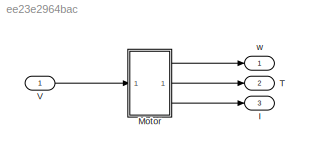
MODEL slx_ee23e2964bac
KIND library
CONFIG AbsTol = auto
CONFIG EnableMultiTasking = off
CONFIG FixedStep = auto
CONFIG MaxStep = auto
CONFIG MinStep = auto
CONFIG RelTol = 1e-3
CONFIG SampleTimeConstraint = Unconstrained
CONFIG SolverName = VariableStepAuto
CONFIG StartTime = 0.0
CONFIG StopTime = 10.0
BLOCK [Outport] I
  NameLocation = right
  Port = 3
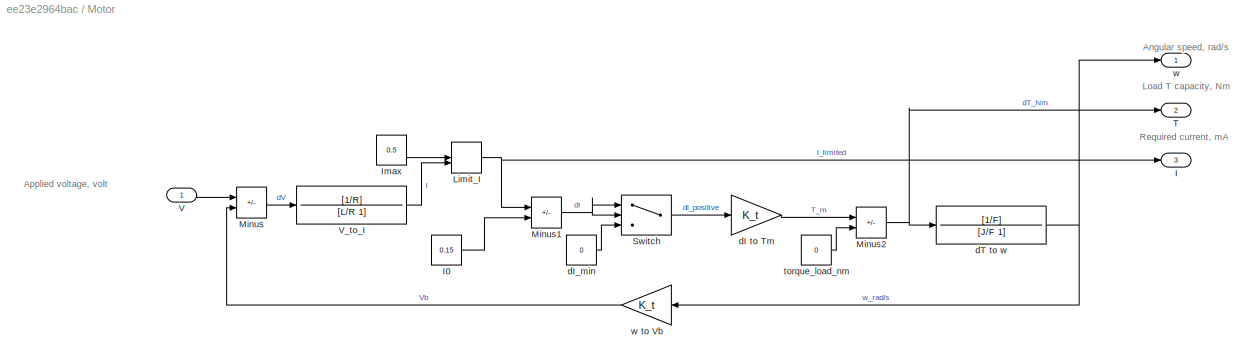
BLOCK [SubSystem] Motor
BLOCK [Outport] Motor/I
  Port = 3
BLOCK [Constant] Motor/I0
  Value = 0.15
BLOCK [Constant] Motor/Imax
  Value = 0.5
BLOCK [MinMax] Motor/Limit_I
  Inputs = 2
BLOCK [Sum] Motor/Minus
  IconShape = rectangular
  Inputs = +-
BLOCK [Sum] Motor/Minus1
  IconShape = rectangular
  Inputs = +-
  NameLocation = top
BLOCK [Sum] Motor/Minus2
  IconShape = rectangular
  Inputs = +-
BLOCK [Switch] Motor/Switch
  Criteria = u2 > Threshold
  InputSameDT = off
  SaturateOnIntegerOverflow = off
BLOCK [Outport] Motor/T
  Port = 2
BLOCK [Inport] Motor/V
BLOCK [TransferFcn] Motor/V_to_I
  Denominator = [L/R 1]
  Numerator = [1/R]
BLOCK [Gain] Motor/dI to Tm
  Gain = K_t
BLOCK [Constant] Motor/dI_min
  Value = 0
BLOCK [TransferFcn] Motor/dT to w
  Denominator = [J/F 1]
  Numerator = [1/F]
BLOCK [Constant] Motor/torque_load_nm
  Value = 0
BLOCK [Outport] Motor/w
BLOCK [Gain] Motor/w to Vb
  Gain = K_t
BLOCK [Outport] T
  NameLocation = right
  Port = 2
BLOCK [Inport] V
BLOCK [Outport] w
  NameLocation = right
ANNOTATION Motor: Angular speed, rad/s
ANNOTATION Motor: Applied voltage, volt
ANNOTATION Motor: Load T capacity, Nm
ANNOTATION Motor: Required current, mA
LINE Motor/I0:1 -> Motor/Minus1:2
LINE Motor/Imax:1 -> Motor/Limit_I:1
NET Motor/Limit_I:1 -> Motor/I:1, Motor/Minus1:1
NET Motor/Minus1:1 -> Motor/Switch:1, Motor/Switch:2
NET Motor/Minus2:1 -> Motor/T:1, Motor/dT to w:1
LINE Motor/Minus:1 -> Motor/V_to_I:1
LINE Motor/Switch:1 -> Motor/dI to Tm:1
LINE Motor/V:1 -> Motor/Minus:1
LINE Motor/V_to_I:1 -> Motor/Limit_I:2
LINE Motor/dI to Tm:1 -> Motor/Minus2:1
LINE Motor/dI_min:1 -> Motor/Switch:3
NET Motor/dT to w:1 -> Motor/w to Vb:1, Motor/w:1
LINE Motor/torque_load_nm:1 -> Motor/Minus2:2
LINE Motor/w to Vb:1 -> Motor/Minus:2
LINE Motor:1 -> w:1
LINE Motor:2 -> T:1
LINE Motor:3 -> I:1
LINE V:1 -> Motor:1
note: NET lines group one-source signal fan-out (src -> all destinations, sorted); 1:1 wires keep LINE
